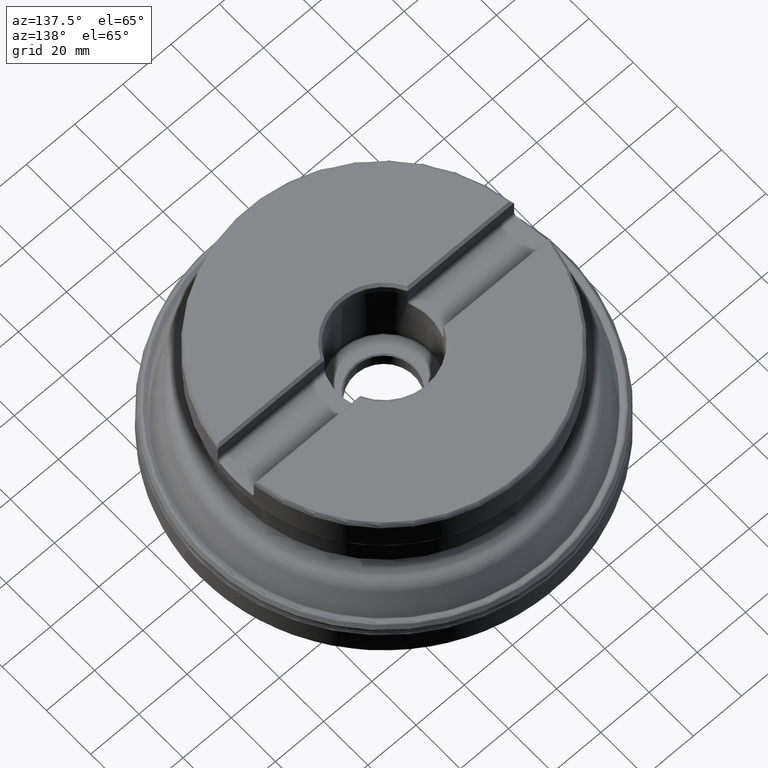
[diagram: clean part render]
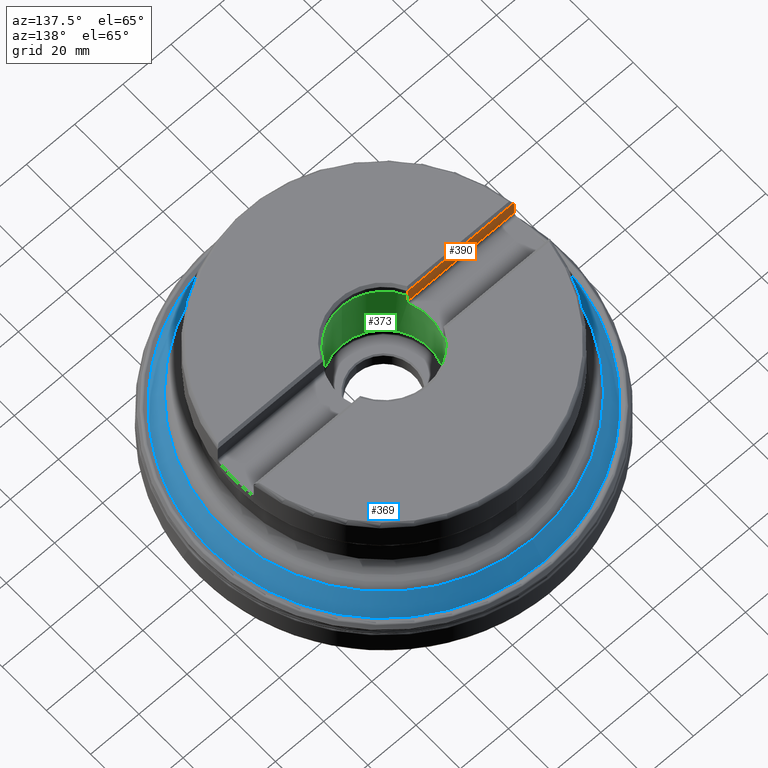
[diagram: same view with three faces highlighted in distinct colors, each labeled with its STEP entity id]
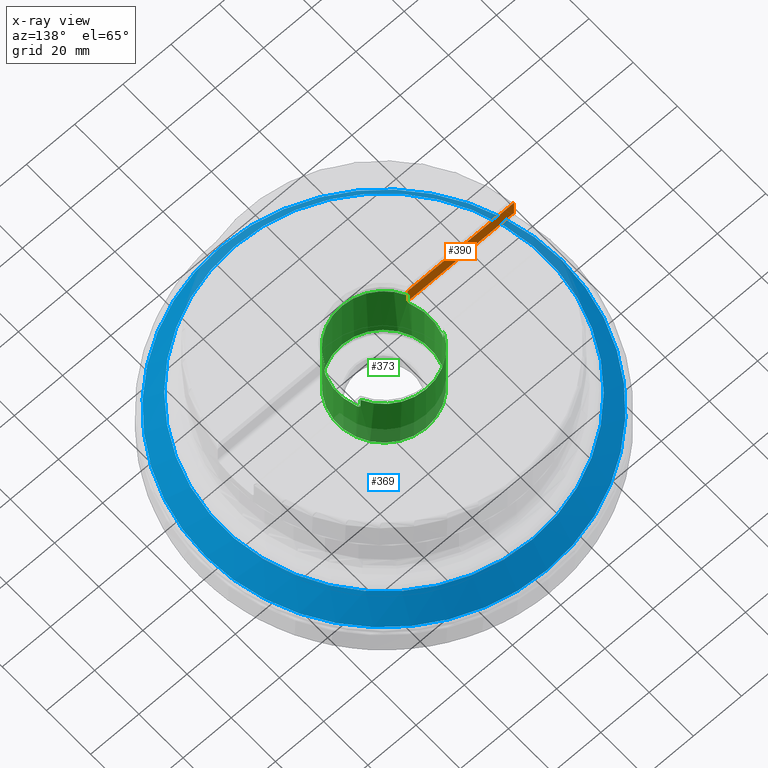
[diagram: x-ray of the same camera — body ghosted, the three highlighted faces saturated]
A machine part, auxiliary view with three faces highlighted in distinct colors.
The next image is the same camera in x-ray (body ghosted, the three faces saturated) — at least one of them is partly hidden behind the body in this view.
Their STEP definitions:

[orange] entity #390 — the highlighted planar face has unit normal (0, 1, -0).
#178=PLANE('',#1263);
#196=LINE('',#1954,#223);
#209=LINE('',#2147,#236);
#214=LINE('',#2247,#241);
#215=LINE('',#2253,#242);
#223=VECTOR('',#1321,1.);
#236=VECTOR('',#1410,1.);
#241=VECTOR('',#1479,1.);
#242=VECTOR('',#1480,1.);
#390=ADVANCED_FACE('',(#460),#178,.T.);
#460=FACE_OUTER_BOUND('',#526,.T.);
#526=EDGE_LOOP('',(#721,#722,#723,#724,#725,#726,#727));
#721=ORIENTED_EDGE('',*,*,#1021,.T.);
#722=ORIENTED_EDGE('',*,*,#1022,.T.);
#723=ORIENTED_EDGE('',*,*,#1003,.F.);
#724=ORIENTED_EDGE('',*,*,#997,.F.);
#725=ORIENTED_EDGE('',*,*,#1023,.T.);
#726=ORIENTED_EDGE('',*,*,#951,.F.);
#727=ORIENTED_EDGE('',*,*,#938,.F.);
#841=VERTEX_POINT('',#1866);
#842=VERTEX_POINT('',#1874);
#854=VERTEX_POINT('',#1955);
#893=VERTEX_POINT('',#2146);
#894=VERTEX_POINT('',#2148);
#898=VERTEX_POINT('',#2195);
#911=VERTEX_POINT('',#2248);
#938=EDGE_CURVE('',#841,#842,#1140,.T.);
#951=EDGE_CURVE('',#842,#854,#196,.T.);
#997=EDGE_CURVE('',#893,#894,#209,.T.);
#1003=EDGE_CURVE('',#894,#898,#1159,.T.);
#1021=EDGE_CURVE('',#841,#911,#214,.T.);
#1022=EDGE_CURVE('',#911,#898,#1161,.T.);
#1023=EDGE_CURVE('',#893,#854,#215,.T.);
#1140=B_SPLINE_CURVE_WITH_KNOTS('',3,(#1867,#1868,#1869,#1870,#1871,#1872,
#1873),.UNSPECIFIED.,.F.,.F.,(4,3,4),(0.,0.548414241292166,1.),
 .UNSPECIFIED.);
#1159=B_SPLINE_CURVE_WITH_KNOTS('',3,(#2188,#2189,#2190,#2191,#2192,#2193,
#2194),.UNSPECIFIED.,.F.,.F.,(4,3,4),(0.,0.643246009663333,1.),
 .UNSPECIFIED.);
#1161=B_SPLINE_CURVE_WITH_KNOTS('',3,(#2249,#2250,#2251,#2252),
 .UNSPECIFIED.,.F.,.F.,(4,4),(0.,1.),.UNSPECIFIED.);
#1263=AXIS2_PLACEMENT_3D('',#2254,#1481,#1482);
#1321=DIRECTION('',(0.,-1.17145536458252E-15,-1.));
#1410=DIRECTION('',(1.17145536458252E-15,1.17145536458252E-15,1.));
#1479=DIRECTION('',(1.,-2.13237263588696E-31,2.49797936359876E-46));
#1480=DIRECTION('',(-1.,1.37230767120917E-30,1.17145536458252E-15));
#1481=DIRECTION('',(2.13237263588696E-31,1.,-9.89427717575514E-16));
#1482=DIRECTION('',(-1.16573417585641E-15,-9.8879238130678E-16,-1.));
#1866=CARTESIAN_POINT('',(-61.2948940235472,-8.13999999999993,59.325));
#1867=CARTESIAN_POINT('',(-61.2948940235472,-8.13999999999993,59.325));
#1868=CARTESIAN_POINT('',(-61.3554017640917,-8.13999999999993,59.1875659465995));
#1869=CARTESIAN_POINT('',(-61.4005424922713,-8.13999999999993,59.0423191600128));
#1870=CARTESIAN_POINT('',(-61.4285412812013,-8.13999999999993,58.8947882360736));
#1871=CARTESIAN_POINT('',(-61.451625619956,-8.13999999999993,58.773152481273));
#1872=CARTESIAN_POINT('',(-61.4633256503421,-8.13999999999993,58.6488068800256));
#1873=CARTESIAN_POINT('',(-61.4633256503421,-8.13999999999993,58.525));
#1874=CARTESIAN_POINT('',(-61.4633256503421,-8.13999999999993,58.525));
#1954=CARTESIAN_POINT('',(-61.4633256503421,-8.13999999999999,8.05394162106467E-15));
#1955=CARTESIAN_POINT('',(-61.4633256503421,-8.13999999999994,51.9950000000001));
#2146=CARTESIAN_POINT('',(-17.2233243016555,-8.13999999999994,51.995));
#2147=CARTESIAN_POINT('',(-17.2233243016556,-8.13999999999999,2.82302972701837E-14));
#2148=CARTESIAN_POINT('',(-17.2233243016555,-8.13999999999993,56.325));
#2188=CARTESIAN_POINT('',(-17.2233243016555,-8.13999999999993,56.325));
#2189=CARTESIAN_POINT('',(-17.241787737125,-8.13999999999993,56.9624801250739));
#2190=CARTESIAN_POINT('',(-17.2602457564619,-8.13999999999993,57.5999604070386));
#2191=CARTESIAN_POINT('',(-17.2786984115604,-8.13999999999993,58.2374408442548));
#2192=CARTESIAN_POINT('',(-17.2889325338785,-8.13999999999993,58.590997160949));
#2193=CARTESIAN_POINT('',(-17.2991650061558,-8.13999999999993,58.9445535254094));
#2194=CARTESIAN_POINT('',(-17.3093958371532,-8.13999999999993,59.2981099373595));
#2195=CARTESIAN_POINT('',(-17.3093958371532,-8.13999999999993,59.2981099373595));
#2247=CARTESIAN_POINT('',(67.0000000000001,-8.13999999999993,59.325));
#2248=CARTESIAN_POINT('',(-17.3391062539844,-8.13999999999993,59.325));
#2249=CARTESIAN_POINT('',(-17.3391062539844,-8.13999999999993,59.325));
#2250=CARTESIAN_POINT('',(-17.3292034727386,-8.13999999999993,59.3160358823358));
#2251=CARTESIAN_POINT('',(-17.3193000014706,-8.13999999999993,59.3070725268889));
#2252=CARTESIAN_POINT('',(-17.3093958371532,-8.13999999999993,59.2981099373595));
#2253=CARTESIAN_POINT('',(67.0000000000001,-8.13999999999994,51.9949999999999));
#2254=CARTESIAN_POINT('',(67.0000000000001,-8.13999999999993,60.3249999999999));

[blue] entity #369 — the highlighted conical surface has half-angle 30 deg.
#159=CONICAL_SURFACE('',#1222,71.9875901374471,30.0000000000001);
#265=FACE_BOUND('',#491,.T.);
#266=FACE_BOUND('',#492,.T.);
#369=ADVANCED_FACE('',(#265,#266),#159,.T.);
#491=EDGE_LOOP('',(#648));
#492=EDGE_LOOP('',(#649));
#648=ORIENTED_EDGE('',*,*,#979,.T.);
#649=ORIENTED_EDGE('',*,*,#978,.F.);
#877=VERTEX_POINT('',#2059);
#878=VERTEX_POINT('',#2062);
#978=EDGE_CURVE('',#877,#877,#1077,.T.);
#979=EDGE_CURVE('',#878,#878,#1078,.T.);
#1077=CIRCLE('',#1219,73.8904016023129);
#1078=CIRCLE('',#1221,67.2027008428951);
#1219=AXIS2_PLACEMENT_3D('',#2058,#1380,#1381);
#1221=AXIS2_PLACEMENT_3D('',#2061,#1384,#1385);
#1222=AXIS2_PLACEMENT_3D('',#2063,#1386,#1387);
#1380=DIRECTION('',(0.,-1.17145536458252E-15,-1.));
#1381=DIRECTION('',(0.,1.,-1.17384899686518E-15));
#1384=DIRECTION('',(0.,-1.17145536458252E-15,-1.));
#1385=DIRECTION('',(0.,-1.,1.18741179884245E-15));
#1386=DIRECTION('',(0.,-1.17145536458252E-15,-1.));
#1387=DIRECTION('',(0.,1.,-1.21554468175846E-15));
#2058=CARTESIAN_POINT('',(0.,1.44089009843651E-14,12.3));
#2059=CARTESIAN_POINT('',(0.,73.8904016023129,12.2999999999999));
#2061=CARTESIAN_POINT('',(0.,2.79783809853684E-14,23.8834375011285));
#2062=CARTESIAN_POINT('',(0.,-67.2027008428951,23.8834375011286));
#2063=CARTESIAN_POINT('',(0.,1.82697439028846E-14,15.5957661343721));

[green] entity #373 — the highlighted cylindrical surface (bore or boss wall) has radius 19.05 mm, axis along (-0, -0, -1).
#187=CYLINDRICAL_SURFACE('',#1233,19.05);
#205=LINE('',#2086,#232);
#208=LINE('',#2105,#235);
#209=LINE('',#2147,#236);
#210=LINE('',#2186,#237);
#232=VECTOR('',#1396,1.);
#235=VECTOR('',#1401,1.);
#236=VECTOR('',#1410,1.);
#237=VECTOR('',#1415,1.);
#269=FACE_BOUND('',#497,.T.);
#270=FACE_BOUND('',#498,.T.);
#373=ADVANCED_FACE('',(#269,#270),#187,.F.);
#497=EDGE_LOOP('',(#666));
#498=EDGE_LOOP('',(#667,#668,#669,#670,#671,#672,#673,#674,#675,#676,#677,
#678));
#666=ORIENTED_EDGE('',*,*,#992,.T.);
#667=ORIENTED_EDGE('',*,*,#993,.T.);
#668=ORIENTED_EDGE('',*,*,#991,.T.);
#669=ORIENTED_EDGE('',*,*,#994,.F.);
#670=ORIENTED_EDGE('',*,*,#995,.T.);
#671=ORIENTED_EDGE('',*,*,#996,.F.);
#672=ORIENTED_EDGE('',*,*,#997,.T.);
#673=ORIENTED_EDGE('',*,*,#998,.T.);
#674=ORIENTED_EDGE('',*,*,#986,.T.);
#675=ORIENTED_EDGE('',*,*,#999,.F.);
#676=ORIENTED_EDGE('',*,*,#1000,.T.);
#677=ORIENTED_EDGE('',*,*,#1001,.F.);
#678=ORIENTED_EDGE('',*,*,#1002,.T.);
#882=VERTEX_POINT('',#2077);
#884=VERTEX_POINT('',#2085);
#886=VERTEX_POINT('',#2096);
#888=VERTEX_POINT('',#2104);
#889=VERTEX_POINT('',#2108);
#890=VERTEX_POINT('',#2110);
#891=VERTEX_POINT('',#2127);
#892=VERTEX_POINT('',#2129);
#893=VERTEX_POINT('',#2146);
#894=VERTEX_POINT('',#2148);
#895=VERTEX_POINT('',#2166);
#896=VERTEX_POINT('',#2168);
#897=VERTEX_POINT('',#2185);
#986=EDGE_CURVE('',#882,#884,#205,.T.);
#991=EDGE_CURVE('',#886,#888,#208,.T.);
#992=EDGE_CURVE('',#889,#889,#1081,.T.);
#993=EDGE_CURVE('',#890,#886,#1082,.T.);
#994=EDGE_CURVE('',#891,#888,#1155,.T.);
#995=EDGE_CURVE('',#891,#892,#1083,.T.);
#996=EDGE_CURVE('',#893,#892,#1156,.T.);
#997=EDGE_CURVE('',#893,#894,#209,.T.);
#998=EDGE_CURVE('',#894,#882,#1084,.T.);
#999=EDGE_CURVE('',#895,#884,#1157,.T.);
#1000=EDGE_CURVE('',#895,#896,#1085,.T.);
#1001=EDGE_CURVE('',#897,#896,#1158,.T.);
#1002=EDGE_CURVE('',#897,#890,#210,.T.);
#1081=CIRCLE('',#1228,19.05);
#1082=CIRCLE('',#1229,19.05);
#1083=CIRCLE('',#1230,19.05);
#1084=CIRCLE('',#1231,19.05);
#1085=CIRCLE('',#1232,19.05);
#1155=B_SPLINE_CURVE_WITH_KNOTS('',3,(#2111,#2112,#2113,#2114,#2115,#2116,
#2117,#2118,#2119,#2120,#2121,#2122,#2123,#2124,#2125,#2126),
 .UNSPECIFIED.,.F.,.F.,(4,3,3,3,3,4),(0.,0.199103960470918,0.416914410658447,
0.61656256545081,0.808005896815442,1.),.UNSPECIFIED.);
#1156=B_SPLINE_CURVE_WITH_KNOTS('',3,(#2130,#2131,#2132,#2133,#2134,#2135,
#2136,#2137,#2138,#2139,#2140,#2141,#2142,#2143,#2144,#2145),
 .UNSPECIFIED.,.F.,.F.,(4,3,3,3,3,4),(0.,0.0809125531654073,0.293289707834642,
0.524981491384478,0.762639061440075,1.),.UNSPECIFIED.);
#1157=B_SPLINE_CURVE_WITH_KNOTS('',3,(#2150,#2151,#2152,#2153,#2154,#2155,
#2156,#2157,#2158,#2159,#2160,#2161,#2162,#2163,#2164,#2165),
 .UNSPECIFIED.,.F.,.F.,(4,3,3,3,3,4),(0.,0.199103960470919,0.416914410658447,
0.61656256545081,0.808005896815442,1.),.UNSPECIFIED.);
#1158=B_SPLINE_CURVE_WITH_KNOTS('',3,(#2169,#2170,#2171,#2172,#2173,#2174,
#2175,#2176,#2177,#2178,#2179,#2180,#2181,#2182,#2183,#2184),
 .UNSPECIFIED.,.F.,.F.,(4,3,3,3,3,4),(0.,0.0809125531654076,0.293289707834641,
0.524981491384475,0.762639061440075,1.),.UNSPECIFIED.);
#1228=AXIS2_PLACEMENT_3D('',#2107,#1404,#1405);
#1229=AXIS2_PLACEMENT_3D('',#2109,#1406,#1407);
#1230=AXIS2_PLACEMENT_3D('',#2128,#1408,#1409);
#1231=AXIS2_PLACEMENT_3D('',#2149,#1411,#1412);
#1232=AXIS2_PLACEMENT_3D('',#2167,#1413,#1414);
#1233=AXIS2_PLACEMENT_3D('',#2187,#1416,#1417);
#1396=DIRECTION('',(-1.17145536458252E-15,-1.17145536458252E-15,-1.));
#1401=DIRECTION('',(-1.17145536458252E-15,-1.17145536458252E-15,-1.));
#1404=DIRECTION('',(-1.17145536458252E-15,-1.17145536458252E-15,-1.));
#1405=DIRECTION('',(0.,-1.,1.09273919746571E-15));
#1406=DIRECTION('',(1.17145536458252E-15,1.17145536458252E-15,1.));
#1407=DIRECTION('',(0.,-1.,1.09273919746571E-15));
#1408=DIRECTION('',(1.17145536458252E-15,7.45233380313038E-16,1.));
#1409=DIRECTION('',(6.47031582366316E-31,1.,-7.2849279831047E-16));
#1410=DIRECTION('',(1.17145536458252E-15,1.17145536458252E-15,1.));
#1411=DIRECTION('',(1.17145536458252E-15,1.17145536458252E-15,1.));
#1412=DIRECTION('',(0.,-1.,1.09273919746571E-15));
#1413=DIRECTION('',(1.17145536458252E-15,7.45233380313038E-16,1.));
#1414=DIRECTION('',(6.47031582366316E-31,1.,-7.2849279831047E-16));
#1415=DIRECTION('',(1.17145536458252E-15,1.17145536458252E-15,1.));
#1416=DIRECTION('',(-1.17145536458252E-15,-1.17145536458252E-15,-1.));
#1417=DIRECTION('',(0.,-1.,1.17145536458252E-15));
#2077=CARTESIAN_POINT('',(17.2233243016557,-8.13999999999993,56.325));
#2085=CARTESIAN_POINT('',(17.2233243016557,-8.13999999999994,51.995));
#2086=CARTESIAN_POINT('',(17.2233243016556,-8.13999999999999,-1.21224140280543E-14));
#2096=CARTESIAN_POINT('',(-17.2233243016555,8.14000000000007,56.325));
#2104=CARTESIAN_POINT('',(-17.2233243016555,8.14000000000006,51.995));
#2105=CARTESIAN_POINT('',(-17.2233243016556,8.14000000000003,1.50858241213284E-14));
#2107=CARTESIAN_POINT('',(3.31910791357896E-14,3.31910791357896E-14,28.3332));
#2108=CARTESIAN_POINT('',(3.31910791357896E-14,-19.05,28.3332));
#2109=CARTESIAN_POINT('',(6.59822234101107E-14,6.59822234101107E-14,56.325));
#2110=CARTESIAN_POINT('',(17.2233243016557,8.14000000000007,56.325));
#2111=CARTESIAN_POINT('',(-17.7408821652137,6.94000000000006,50.795));
#2112=CARTESIAN_POINT('',(-17.6934245699815,7.0613169459452,50.795));
#2113=CARTESIAN_POINT('',(-17.644213349221,7.18330655195581,50.8136984276106));
#2114=CARTESIAN_POINT('',(-17.5962702416417,7.29888851696712,50.8499240058454));
#2115=CARTESIAN_POINT('',(-17.5439404665724,7.4250459259565,50.8894641286388));
#2116=CARTESIAN_POINT('',(-17.4919085157504,7.54648815902288,50.9508955302173));
#2117=CARTESIAN_POINT('',(-17.4446275718405,7.65424515414695,51.0307106970532));
#2118=CARTESIAN_POINT('',(-17.4012458849818,7.75311543533684,51.1039435111197));
#2119=CARTESIAN_POINT('',(-17.3608924703755,7.84273006959028,51.194390243678));
#2120=CARTESIAN_POINT('',(-17.3273844436799,7.91607531172609,51.2969477198383));
#2121=CARTESIAN_POINT('',(-17.2952664968742,7.9863778277998,51.3952506009289));
#2122=CARTESIAN_POINT('',(-17.2687419754387,8.04330950839282,51.5071211798142));
#2123=CARTESIAN_POINT('',(-17.2508576748311,8.08148559874474,51.6248505330836));
#2124=CARTESIAN_POINT('',(-17.2329444570005,8.11972341622495,51.7427702435852));
#2125=CARTESIAN_POINT('',(-17.2233243016555,8.14000000000006,51.869747965352));
#2126=CARTESIAN_POINT('',(-17.2233243016555,8.14000000000006,51.995));
#2127=CARTESIAN_POINT('',(-17.7408821652137,6.94000000000006,50.795));
#2128=CARTESIAN_POINT('',(5.95040752439693E-14,5.95040752439693E-14,50.795));
#2129=CARTESIAN_POINT('',(-17.7408821652137,-6.93999999999994,50.795));
#2130=CARTESIAN_POINT('',(-17.2233243016555,-8.13999999999994,51.995));
#2131=CARTESIAN_POINT('',(-17.2233243016555,-8.13999999999994,51.9414586919901));
#2132=CARTESIAN_POINT('',(-17.2250300723741,-8.13639362446961,51.8877729552307));
#2133=CARTESIAN_POINT('',(-17.2283957612751,-8.12926069780491,51.8348157540317));
#2134=CARTESIAN_POINT('',(-17.2370983077662,-8.11081733368455,51.6978861330751));
#2135=CARTESIAN_POINT('',(-17.2574676480965,-8.06765313497404,51.5628760739881));
#2136=CARTESIAN_POINT('',(-17.2863282240077,-8.00533300568253,51.4426725726498));
#2137=CARTESIAN_POINT('',(-17.3177876274255,-7.93740109418985,51.3116450265447));
#2138=CARTESIAN_POINT('',(-17.3602583933791,-7.84459305526755,51.1936124797213));
#2139=CARTESIAN_POINT('',(-17.407819966145,-7.73759032427289,51.0984233581973));
#2140=CARTESIAN_POINT('',(-17.4566582160654,-7.6277153597882,51.0006791113958));
#2141=CARTESIAN_POINT('',(-17.5123323522674,-7.49947480001891,50.9236455774448));
#2142=CARTESIAN_POINT('',(-17.5688944391596,-7.36453991676761,50.8726070834726));
#2143=CARTESIAN_POINT('',(-17.6254214683654,-7.22968866736172,50.8216002236147));
#2144=CARTESIAN_POINT('',(-17.6844656884717,-7.08421874150652,50.795));
#2145=CARTESIAN_POINT('',(-17.7408821652137,-6.93999999999994,50.795));
#2146=CARTESIAN_POINT('',(-17.2233243016555,-8.13999999999994,51.995));
#2147=CARTESIAN_POINT('',(-17.2233243016556,-8.13999999999999,2.82302972701837E-14));
#2148=CARTESIAN_POINT('',(-17.2233243016555,-8.13999999999993,56.325));
#2149=CARTESIAN_POINT('',(6.59822234101107E-14,6.59822234101107E-14,56.325));
#2150=CARTESIAN_POINT('',(17.7408821652138,-6.93999999999994,50.795));
#2151=CARTESIAN_POINT('',(17.6934245699816,-7.06131694594507,50.795));
#2152=CARTESIAN_POINT('',(17.6442133492211,-7.18330655195569,50.8136984276106));
#2153=CARTESIAN_POINT('',(17.5962702416418,-7.29888851696699,50.8499240058454));
#2154=CARTESIAN_POINT('',(17.5439404665725,-7.42504592595638,50.8894641286387));
#2155=CARTESIAN_POINT('',(17.4919085157505,-7.54648815902276,50.9508955302172));
#2156=CARTESIAN_POINT('',(17.4446275718406,-7.65424515414683,51.0307106970532));
#2157=CARTESIAN_POINT('',(17.401245884982,-7.75311543533672,51.1039435111197));
#2158=CARTESIAN_POINT('',(17.3608924703756,-7.84273006959016,51.194390243678));
#2159=CARTESIAN_POINT('',(17.32738444368,-7.91607531172596,51.2969477198383));
#2160=CARTESIAN_POINT('',(17.2952664968743,-7.98637782779968,51.3952506009289));
#2161=CARTESIAN_POINT('',(17.2687419754388,-8.04330950839269,51.5071211798141));
#2162=CARTESIAN_POINT('',(17.2508576748312,-8.08148559874462,51.6248505330836));
#2163=CARTESIAN_POINT('',(17.2329444570007,-8.11972341622483,51.7427702435851));
#2164=CARTESIAN_POINT('',(17.2233243016557,-8.13999999999994,51.869747965352));
#2165=CARTESIAN_POINT('',(17.2233243016557,-8.13999999999994,51.995));
#2166=CARTESIAN_POINT('',(17.7408821652138,-6.93999999999994,50.795));
#2167=CARTESIAN_POINT('',(5.95040752439693E-14,5.95040752439693E-14,50.795));
#2168=CARTESIAN_POINT('',(17.7408821652138,6.94000000000006,50.795));
#2169=CARTESIAN_POINT('',(17.2233243016557,8.14000000000006,51.995));
#2170=CARTESIAN_POINT('',(17.2233243016557,8.14000000000006,51.94145869199));
#2171=CARTESIAN_POINT('',(17.2250300723742,8.13639362446974,51.8877729552307));
#2172=CARTESIAN_POINT('',(17.2283957612752,8.12926069780503,51.8348157540317));
#2173=CARTESIAN_POINT('',(17.2370983077663,8.11081733368467,51.6978861330751));
#2174=CARTESIAN_POINT('',(17.2574676480966,8.06765313497417,51.562876073988));
#2175=CARTESIAN_POINT('',(17.2863282240079,8.00533300568266,51.4426725726498));
#2176=CARTESIAN_POINT('',(17.3177876274257,7.93740109418997,51.3116450265446));
#2177=CARTESIAN_POINT('',(17.3602583933792,7.84459305526768,51.1936124797213));
#2178=CARTESIAN_POINT('',(17.4078199661451,7.73759032427301,51.0984233581973));
#2179=CARTESIAN_POINT('',(17.4566582160655,7.62771535978833,51.0006791113958));
#2180=CARTESIAN_POINT('',(17.5123323522675,7.49947480001904,50.9236455774447));
#2181=CARTESIAN_POINT('',(17.5688944391597,7.36453991676773,50.8726070834726));
#2182=CARTESIAN_POINT('',(17.6254214683655,7.22968866736185,50.8216002236147));
#2183=CARTESIAN_POINT('',(17.6844656884719,7.08421874150665,50.795));
#2184=CARTESIAN_POINT('',(17.7408821652138,6.94000000000006,50.795));
#2185=CARTESIAN_POINT('',(17.2233243016557,8.14000000000006,51.995));
#2186=CARTESIAN_POINT('',(17.2233243016556,8.14000000000003,-2.52668871769096E-14));
#2187=CARTESIAN_POINT('',(0.,0.,0.));